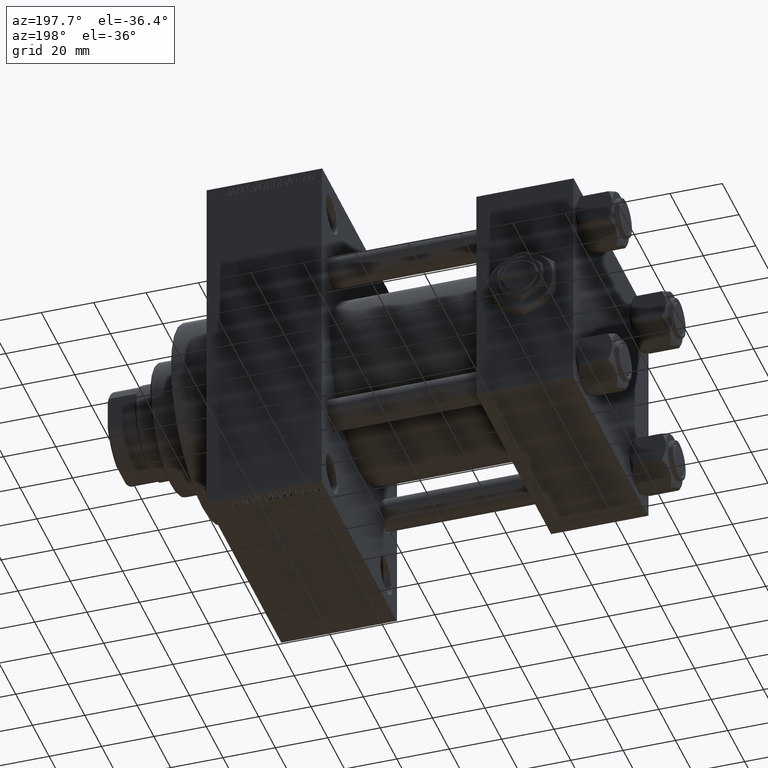
[diagram: clean part render]
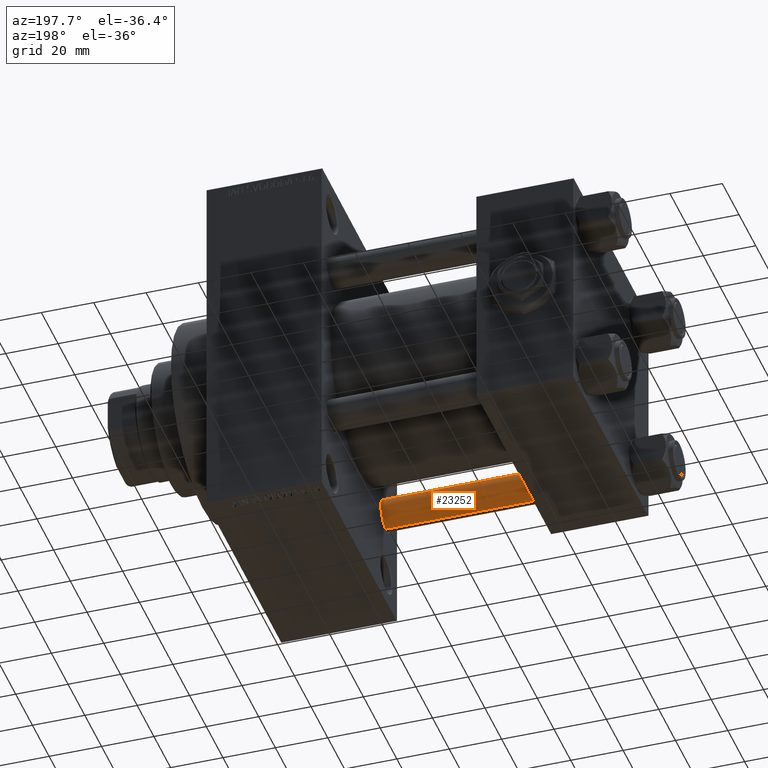
[diagram: same view with one face highlighted and labeled with its STEP entity id]
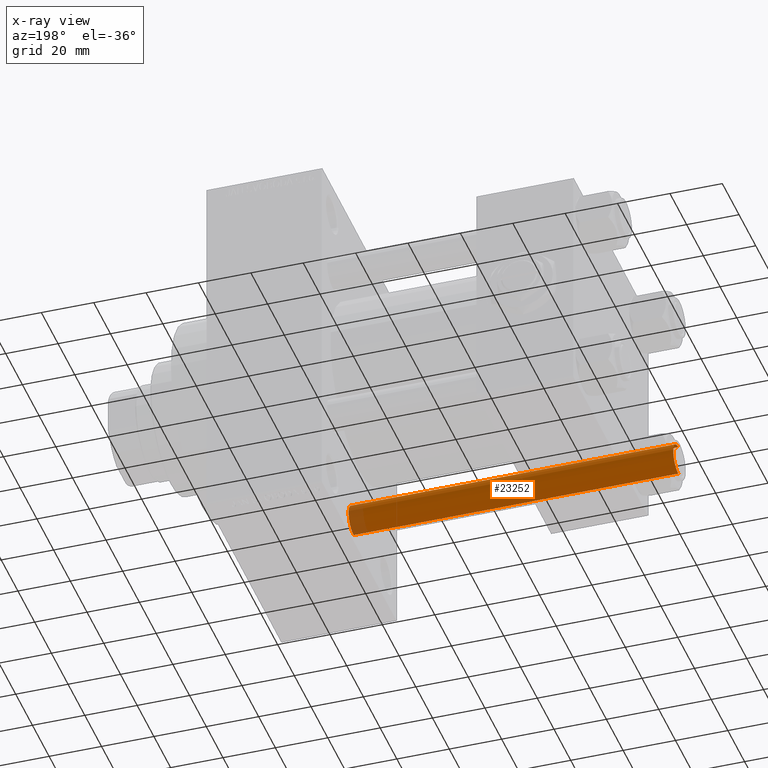
[diagram: x-ray of the same camera — body ghosted, the highlighted face saturated]
A machine part, auxiliary view. The second image highlights one B-rep face of the part: STEP entity #23252.
The next image is the same camera in x-ray: the body ghosted, the highlighted face saturated — about 5% of this face is hidden behind the body in this view.
In plain terms, the highlighted cylindrical surface (edge-blend (fillet) strip) has radius 6 mm, axis along (1, 0, 0).
Its self-contained STEP definition (entity closure, byte-faithful):
#851 = DIRECTION ( 'NONE',  ( -0.000000000000000000, -0.000000000000000000, -1.000000000000000000 ) ) ;
#2519 = CIRCLE ( 'NONE', #8880, 6.000000000000000888 ) ;
#4068 = CARTESIAN_POINT ( 'NONE',  ( -6.000000000000000888, 0.000000000000000000, 125.0000000000000000 ) ) ;
#4586 = ORIENTED_EDGE ( 'NONE', *, *, #37145, .T. ) ;
#6286 = VECTOR ( 'NONE', #35970, 1000.000000000000000 ) ;
#7108 = CARTESIAN_POINT ( 'NONE',  ( 0.000000000000000000, 0.000000000000000000, 124.5000000000000000 ) ) ;
#8250 = EDGE_CURVE ( 'NONE', #20383, #37981, #2519, .T. ) ;
#8880 = AXIS2_PLACEMENT_3D ( 'NONE', #22867, #30801, #19659 ) ;
#11705 = EDGE_LOOP ( 'NONE', ( #48265, #4586, #45743, #13719 ) ) ;
#13674 = VERTEX_POINT ( 'NONE', #23434 ) ;
#13719 = ORIENTED_EDGE ( 'NONE', *, *, #8250, .T. ) ;
#14300 = CARTESIAN_POINT ( 'NONE',  ( -6.000000000000000888, 0.000000000000000000, 124.5000000000000000 ) ) ;
#16455 = LINE ( 'NONE', #17182, #6286 ) ;
#16827 = CIRCLE ( 'NONE', #48452, 6.000000000000000888 ) ;
#17182 = CARTESIAN_POINT ( 'NONE',  ( 6.000000000000000888, 7.347880794884120722E-16, 125.0000000000000000 ) ) ;
#18505 = CARTESIAN_POINT ( 'NONE',  ( 6.000000000000000888, 7.347880794884120722E-16, 0.4999999999999865663 ) ) ;
#19659 = DIRECTION ( 'NONE',  ( 1.000000000000000000, 0.000000000000000000, 0.000000000000000000 ) ) ;
#20136 = CARTESIAN_POINT ( 'NONE',  ( 0.000000000000000000, 0.000000000000000000, 125.0000000000000000 ) ) ;
#20383 = VERTEX_POINT ( 'NONE', #28338 ) ;
#22867 = CARTESIAN_POINT ( 'NONE',  ( 0.000000000000000000, 0.000000000000000000, 0.4999999999999865663 ) ) ;
#23252 = ADVANCED_FACE ( 'NONE', ( #27562 ), #42654, .T. ) ;
#23434 = CARTESIAN_POINT ( 'NONE',  ( 6.000000000000000888, 7.347880794884120722E-16, 124.5000000000000000 ) ) ;
#23520 = AXIS2_PLACEMENT_3D ( 'NONE', #20136, #38933, #42411 ) ;
#23644 = LINE ( 'NONE', #4068, #29256 ) ;
#25924 = DIRECTION ( 'NONE',  ( 0.000000000000000000, 0.000000000000000000, -1.000000000000000000 ) ) ;
#27165 = EDGE_CURVE ( 'NONE', #47029, #20383, #23644, .T. ) ;
#27562 = FACE_OUTER_BOUND ( 'NONE', #11705, .T. ) ;
#28338 = CARTESIAN_POINT ( 'NONE',  ( -6.000000000000000888, 0.000000000000000000, 0.4999999999999865663 ) ) ;
#29074 = EDGE_CURVE ( 'NONE', #13674, #37981, #16455, .T. ) ;
#29256 = VECTOR ( 'NONE', #851, 1000.000000000000000 ) ;
#30801 = DIRECTION ( 'NONE',  ( -0.000000000000000000, -0.000000000000000000, 1.000000000000000000 ) ) ;
#35970 = DIRECTION ( 'NONE',  ( -0.000000000000000000, -0.000000000000000000, -1.000000000000000000 ) ) ;
#37145 = EDGE_CURVE ( 'NONE', #13674, #47029, #16827, .T. ) ;
#37981 = VERTEX_POINT ( 'NONE', #18505 ) ;
#38933 = DIRECTION ( 'NONE',  ( -0.000000000000000000, -0.000000000000000000, -1.000000000000000000 ) ) ;
#42411 = DIRECTION ( 'NONE',  ( -1.000000000000000000, 0.000000000000000000, 0.000000000000000000 ) ) ;
#42654 = CYLINDRICAL_SURFACE ( 'NONE', #23520, 6.000000000000000888 ) ;
#44965 = DIRECTION ( 'NONE',  ( 1.000000000000000000, 0.000000000000000000, 0.000000000000000000 ) ) ;
#45743 = ORIENTED_EDGE ( 'NONE', *, *, #27165, .T. ) ;
#47029 = VERTEX_POINT ( 'NONE', #14300 ) ;
#48265 = ORIENTED_EDGE ( 'NONE', *, *, #29074, .F. ) ;
#48452 = AXIS2_PLACEMENT_3D ( 'NONE', #7108, #25924, #44965 ) ;